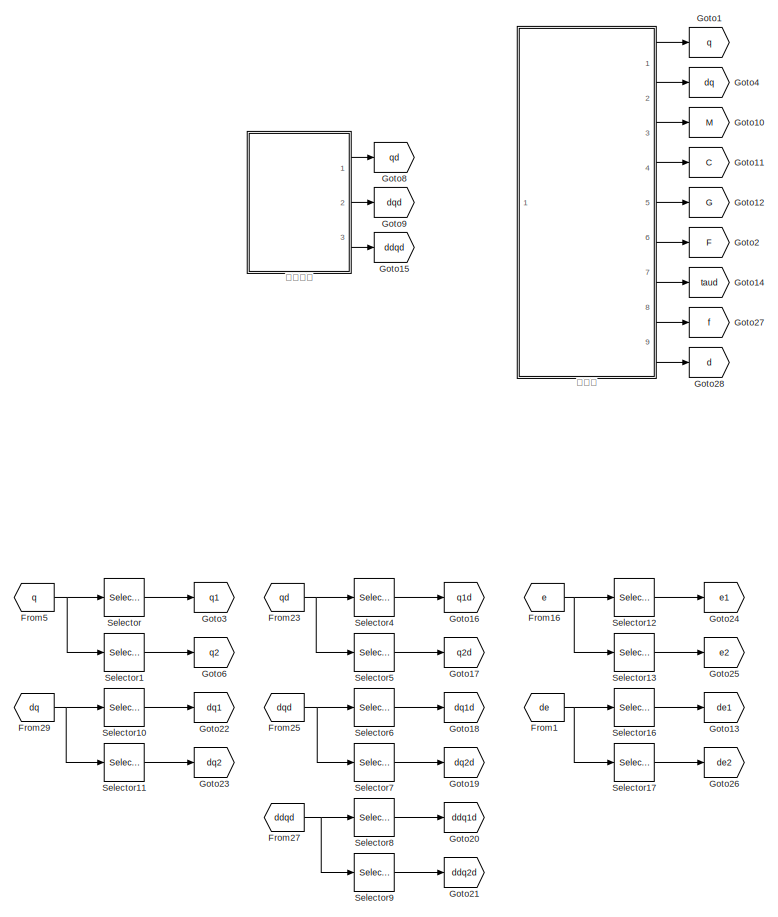
[diagram: root canvas - part 1/2, left side, full height]
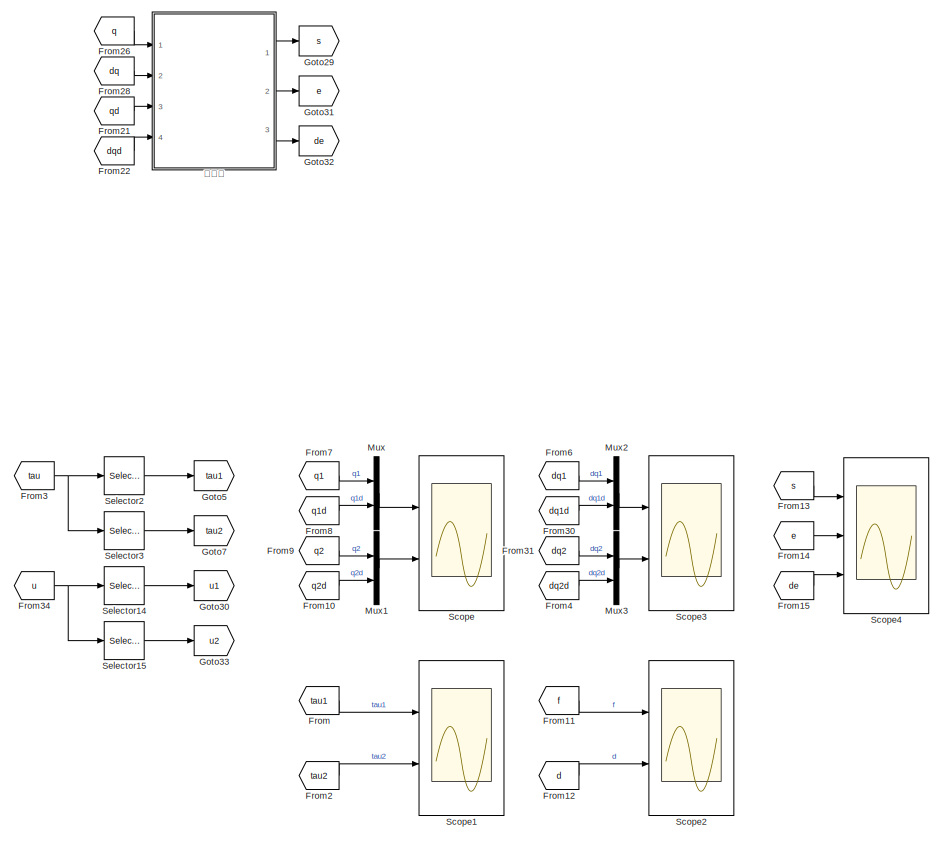
[diagram: root canvas - part 2/2, right side, full height]
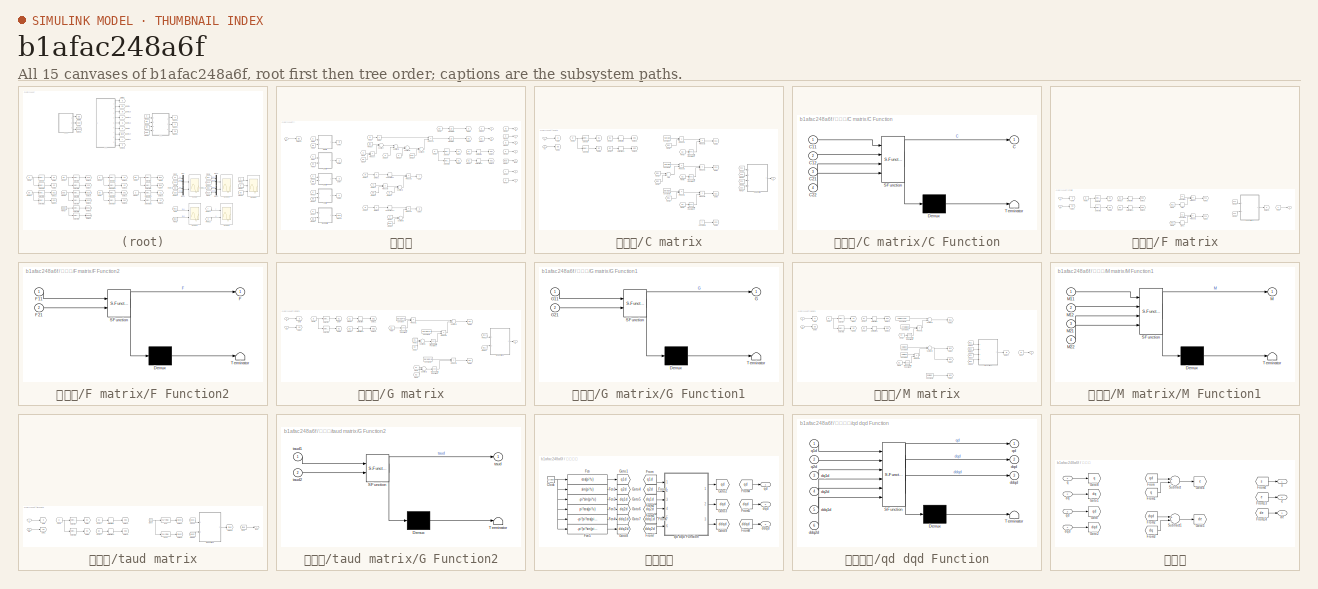
[diagram: thumbnail index - all 15 canvases of the model, root first then tree order]
MODEL slx_b1afac248a6f
KIND model
CONFIG AbsTol = auto
CONFIG FixedStep = 0.005
CONFIG MaxStep = auto
CONFIG MinStep = auto
CONFIG RelTol = 1e-3
CONFIG SampleTimeConstraint = Unconstrained
CONFIG Solver = ode4
CONFIG SolverMode = Auto
CONFIG SolverName = ode4
CONFIG StartTime = 0.0
CONFIG StopTime = 10
BLOCK [From] From
  GotoTag = tau1
BLOCK [From] From1
  GotoTag = de
BLOCK [From] From10
  GotoTag = q2d
BLOCK [From] From11
  GotoTag = f
BLOCK [From] From12
  GotoTag = d
BLOCK [From] From13
  GotoTag = s
BLOCK [From] From14
  GotoTag = e
BLOCK [From] From15
  GotoTag = de
BLOCK [From] From16
  GotoTag = e
BLOCK [From] From2
  GotoTag = tau2
BLOCK [From] From21
  GotoTag = qd
BLOCK [From] From22
  GotoTag = dqd
BLOCK [From] From23
  GotoTag = qd
BLOCK [From] From25
  GotoTag = dqd
BLOCK [From] From26
  GotoTag = q
BLOCK [From] From27
  GotoTag = ddqd
BLOCK [From] From28
  GotoTag = dq
BLOCK [From] From29
  GotoTag = dq
BLOCK [From] From3
  GotoTag = tau
BLOCK [From] From30
  GotoTag = dq1d
BLOCK [From] From31
  GotoTag = dq2
BLOCK [From] From34
  GotoTag = u
BLOCK [From] From4
  GotoTag = dq2d
BLOCK [From] From5
  GotoTag = q
BLOCK [From] From6
  GotoTag = dq1
BLOCK [From] From7
  GotoTag = q1
BLOCK [From] From8
  GotoTag = q1d
BLOCK [From] From9
  GotoTag = q2
BLOCK [Goto] Goto1
  GotoTag = q
BLOCK [Goto] Goto10
  GotoTag = M
BLOCK [Goto] Goto11
  GotoTag = C
BLOCK [Goto] Goto12
  GotoTag = G
BLOCK [Goto] Goto13
  GotoTag = de1
BLOCK [Goto] Goto14
  GotoTag = taud
BLOCK [Goto] Goto15
  GotoTag = ddqd
BLOCK [Goto] Goto16
  GotoTag = q1d
BLOCK [Goto] Goto17
  GotoTag = q2d
BLOCK [Goto] Goto18
  GotoTag = dq1d
BLOCK [Goto] Goto19
  GotoTag = dq2d
BLOCK [Goto] Goto2
  GotoTag = F
BLOCK [Goto] Goto20
  GotoTag = ddq1d
BLOCK [Goto] Goto21
  GotoTag = ddq2d
BLOCK [Goto] Goto22
  GotoTag = dq1
BLOCK [Goto] Goto23
  GotoTag = dq2
BLOCK [Goto] Goto24
  GotoTag = e1
BLOCK [Goto] Goto25
  GotoTag = e2
BLOCK [Goto] Goto26
  GotoTag = de2
BLOCK [Goto] Goto27
  GotoTag = f
BLOCK [Goto] Goto28
  GotoTag = d
BLOCK [Goto] Goto29
  GotoTag = s
BLOCK [Goto] Goto3
  GotoTag = q1
BLOCK [Goto] Goto30
  GotoTag = u1
BLOCK [Goto] Goto31
  GotoTag = e
BLOCK [Goto] Goto32
  GotoTag = de
BLOCK [Goto] Goto33
  GotoTag = u2
BLOCK [Goto] Goto4
  GotoTag = dq
BLOCK [Goto] Goto5
  GotoTag = tau1
BLOCK [Goto] Goto6
  GotoTag = q2
BLOCK [Goto] Goto7
  GotoTag = tau2
BLOCK [Goto] Goto8
  GotoTag = qd
BLOCK [Goto] Goto9
  GotoTag = dqd
BLOCK [Mux] Mux
  DisplayOption = bar
  Inputs = 2
  Ports = [2, 1]
BLOCK [Mux] Mux1
  DisplayOption = bar
  Inputs = 2
  Ports = [2, 1]
BLOCK [Mux] Mux2
  DisplayOption = bar
  Inputs = 2
  Ports = [2, 1]
BLOCK [Mux] Mux3
  DisplayOption = bar
  Inputs = 2
  Ports = [2, 1]
BLOCK [Scope] Scope
  NumInputPorts = 2
  Ports = [2]
  ScopeSpecificationString = Simulink.scopes.TimeScopeBlockCfg('CurrentConfiguration', extmgr.ConfigurationSet(extmgr.Configuration('Core','General UI',true),extmgr.Configuration('Core','Source UI',true),extmgr.Configuration('Sources','WiredSimulink',true),extmgr.Configuration('Visuals','Time Domain',true,'SerializedDisplays',{struct('MinYLimReal','-3.51104','MaxYLimReal','1.50123','YLabelReal','','MinYLimMag','0.00000','MaxY...<+2024ch>
BLOCK [Scope] Scope1
  NumInputPorts = 2
  Ports = [2]
  ScopeSpecificationString = Simulink.scopes.TimeScopeBlockCfg('CurrentConfiguration', extmgr.ConfigurationSet(extmgr.Configuration('Core','General UI',true),extmgr.Configuration('Core','Source UI',true),extmgr.Configuration('Sources','WiredSimulink',true,'DataLoggingVariableName','ScopeData1','DataLoggingSaveFormat','Array','DataLoggingDecimation','1','DataLoggingDecimateData',true),extmgr.Configuration('Visuals','Time Domai...<+2069ch>
BLOCK [Scope] Scope2
  NumInputPorts = 2
  Ports = [2]
  ScopeSpecificationString = Simulink.scopes.TimeScopeBlockCfg('CurrentConfiguration', extmgr.ConfigurationSet(extmgr.Configuration('Core','General UI',true),extmgr.Configuration('Core','Source UI',true),extmgr.Configuration('Sources','WiredSimulink',true,'DataLoggingVariableName','ScopeData1'),extmgr.Configuration('Visuals','Time Domain',true,'SerializedDisplays',{struct('MinYLimReal','-48.52603','MaxYLimReal','48.74842','YL...<+1999ch>
BLOCK [Scope] Scope3
  NumInputPorts = 2
  Ports = [2]
  ScopeSpecificationString = Simulink.scopes.TimeScopeBlockCfg('CurrentConfiguration', extmgr.ConfigurationSet(extmgr.Configuration('Core','General UI',true),extmgr.Configuration('Core','Source UI',true),extmgr.Configuration('Sources','WiredSimulink',true,'DataLoggingVariableName','ScopeData2'),extmgr.Configuration('Visuals','Time Domain',true,'SerializedDisplays',{struct('MinYLimReal','-4.22896','MaxYLimReal','3.96054','YLab...<+2022ch>
BLOCK [Scope] Scope4
  NumInputPorts = 3
  Ports = [3]
  ScopeSpecificationString = Simulink.scopes.TimeScopeBlockCfg('CurrentConfiguration', extmgr.ConfigurationSet(extmgr.Configuration('Core','General UI',true),extmgr.Configuration('Core','Source UI',true),extmgr.Configuration('Sources','WiredSimulink',true,'DataLoggingVariableName','ScopeData1'),extmgr.Configuration('Visuals','Time Domain',true,'SerializedDisplays',{struct('MinYLimReal','-48.52603','MaxYLimReal','48.74842','YL...<+2928ch>
BLOCK [Selector] Selector
  IndexOptions = Index vector (dialog)
  Indices = [1]
  InputPortWidth = 2
  OutputSizes = 1
  Ports = [1, 1]
BLOCK [Selector] Selector1
  IndexOptions = Index vector (dialog)
  Indices = [2]
  InputPortWidth = 2
  OutputSizes = 1
  Ports = [1, 1]
BLOCK [Selector] Selector10
  IndexOptions = Index vector (dialog)
  Indices = [1]
  InputPortWidth = 2
  OutputSizes = 1
  Ports = [1, 1]
BLOCK [Selector] Selector11
  IndexOptions = Index vector (dialog)
  Indices = [2]
  InputPortWidth = 2
  OutputSizes = 1
  Ports = [1, 1]
BLOCK [Selector] Selector12
  IndexOptions = Index vector (dialog)
  Indices = [1]
  InputPortWidth = 2
  OutputSizes = 1
  Ports = [1, 1]
BLOCK [Selector] Selector13
  IndexOptions = Index vector (dialog)
  Indices = [2]
  InputPortWidth = 2
  OutputSizes = 1
  Ports = [1, 1]
BLOCK [Selector] Selector14
  IndexOptions = Index vector (dialog)
  Indices = [1]
  InputPortWidth = 2
  OutputSizes = 1
  Ports = [1, 1]
BLOCK [Selector] Selector15
  IndexOptions = Index vector (dialog)
  Indices = [2]
  InputPortWidth = 2
  OutputSizes = 1
  Ports = [1, 1]
BLOCK [Selector] Selector16
  IndexOptions = Index vector (dialog)
  Indices = [1]
  InputPortWidth = 2
  OutputSizes = 1
  Ports = [1, 1]
BLOCK [Selector] Selector17
  IndexOptions = Index vector (dialog)
  Indices = [2]
  InputPortWidth = 2
  OutputSizes = 1
  Ports = [1, 1]
BLOCK [Selector] Selector2
  IndexOptions = Index vector (dialog)
  Indices = [1]
  InputPortWidth = 2
  OutputSizes = 1
  Ports = [1, 1]
BLOCK [Selector] Selector3
  IndexOptions = Index vector (dialog)
  Indices = [2]
  InputPortWidth = 2
  OutputSizes = 1
  Ports = [1, 1]
BLOCK [Selector] Selector4
  IndexOptions = Index vector (dialog)
  Indices = [1]
  InputPortWidth = 2
  OutputSizes = 1
  Ports = [1, 1]
BLOCK [Selector] Selector5
  IndexOptions = Index vector (dialog)
  Indices = [2]
  InputPortWidth = 2
  OutputSizes = 1
  Ports = [1, 1]
BLOCK [Selector] Selector6
  IndexOptions = Index vector (dialog)
  Indices = [1]
  InputPortWidth = 2
  OutputSizes = 1
  Ports = [1, 1]
BLOCK [Selector] Selector7
  IndexOptions = Index vector (dialog)
  Indices = [2]
  InputPortWidth = 2
  OutputSizes = 1
  Ports = [1, 1]
BLOCK [Selector] Selector8
  IndexOptions = Index vector (dialog)
  Indices = [1]
  InputPortWidth = 2
  OutputSizes = 1
  Ports = [1, 1]
BLOCK [Selector] Selector9
  IndexOptions = Index vector (dialog)
  Indices = [2]
  InputPortWidth = 2
  OutputSizes = 1
  Ports = [1, 1]
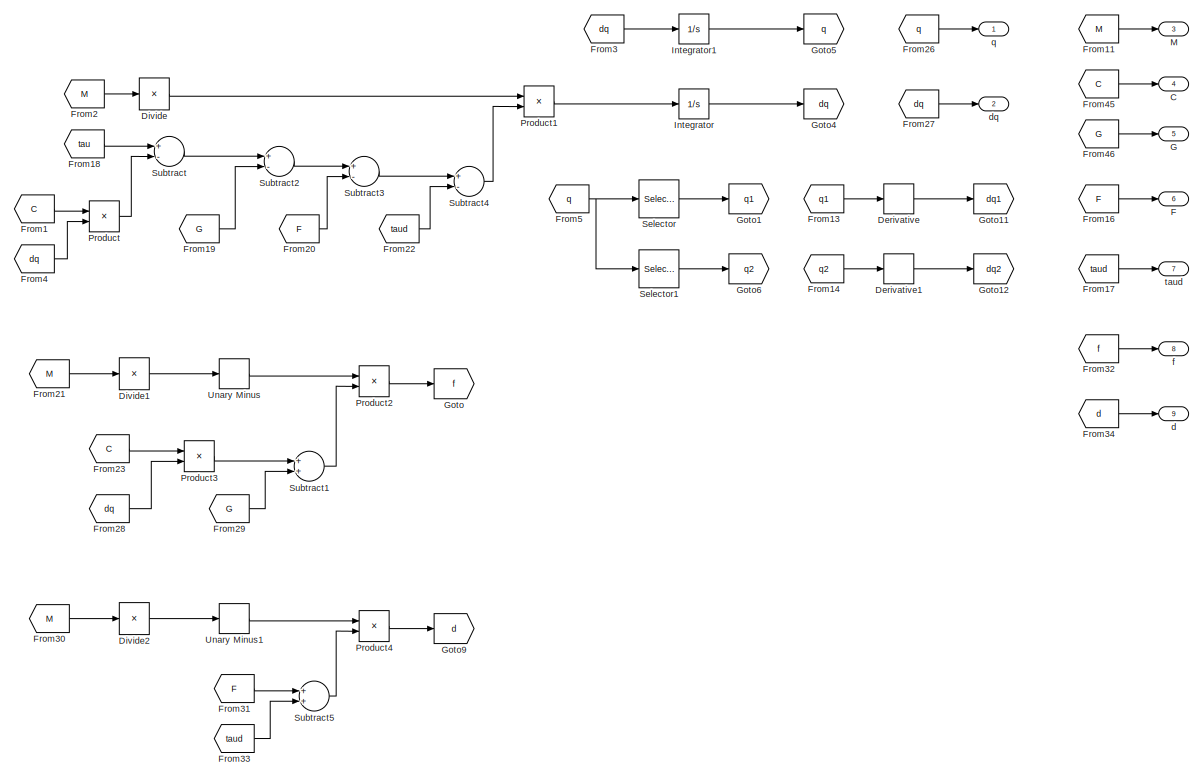
[diagram: 主系统 - part 1/2, center side, full height]
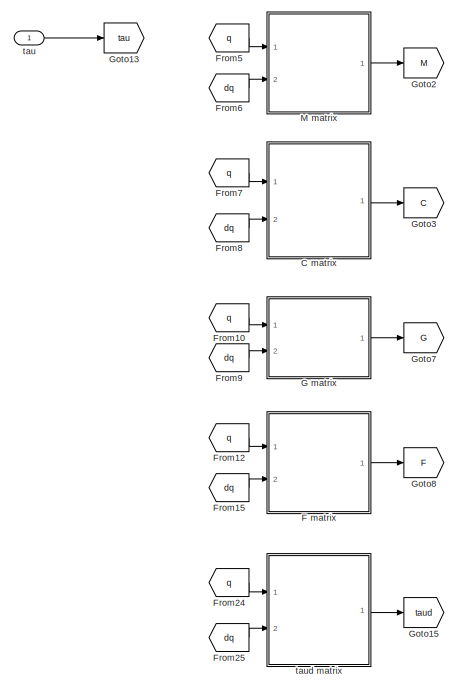
[diagram: 主系统 - part 2/2, left side, full height]
BLOCK [SubSystem] 主系统
  Ports = [1, 9]
  RequestExecContextInheritance = off
  Variant = off
BLOCK [Outport] 主系统/C
  IconDisplay = Port number
  Port = 4
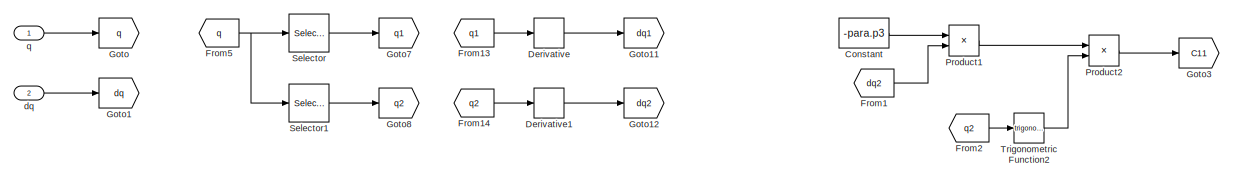
[diagram: 主系统/C matrix - part 1/2, full width, top band]
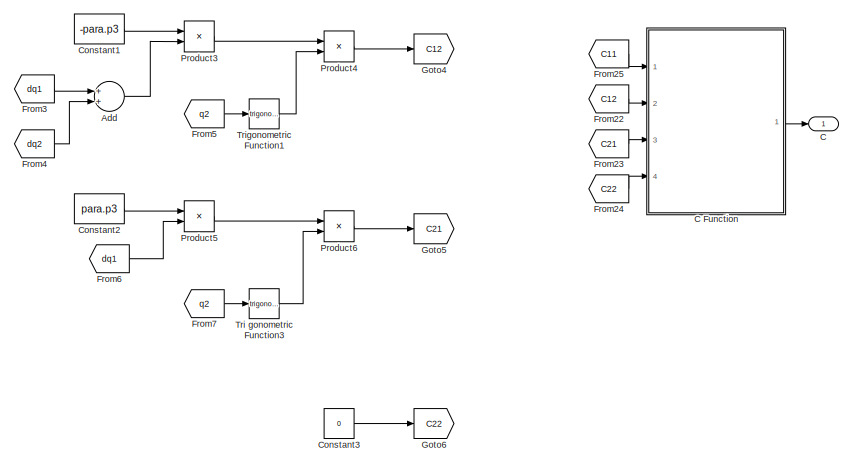
[diagram: 主系统/C matrix - part 2/2, middle right region]
BLOCK [SubSystem] 主系统/C matrix
  Ports = [2, 1]
  RequestExecContextInheritance = off
  Variant = off
BLOCK [Sum] 主系统/C matrix/Add
  InputSameDT = off
  OutDataTypeStr = Inherit: Inherit via internal rule
  Ports = [2, 1]
  SaturateOnIntegerOverflow = off
BLOCK [Outport] 主系统/C matrix/C
  IconDisplay = Port number
BLOCK [SubSystem] 主系统/C matrix/C Function
  ErrorFcn = Stateflow.Translate.translate
  PermitHierarchicalResolution = ExplicitOnly
  Ports = [4, 1]
  RequestExecContextInheritance = off
  SFBlockType = MATLAB Function
  TreatAsAtomicUnit = on
  Variant = off
BLOCK [Demux] 主系统/C matrix/C Function/ Demux 
  Outputs = 1
  Ports = [1, 1]
BLOCK [S-Function] 主系统/C matrix/C Function/ SFunction 
  EnableBusSupport = on
  FunctionName = sf_sfun
  PortCounts = [4 2]
  Ports = [4, 2]
  SFunctionDeploymentMode = off
  Tag = Stateflow S-Function common_2 3
BLOCK [Terminator] 主系统/C matrix/C Function/ Terminator 
BLOCK [Outport] 主系统/C matrix/C Function/C
  IconDisplay = Port number
BLOCK [Inport] 主系统/C matrix/C Function/C11
  IconDisplay = Port number
BLOCK [Inport] 主系统/C matrix/C Function/C12
  IconDisplay = Port number
  Port = 2
BLOCK [Inport] 主系统/C matrix/C Function/C21
  IconDisplay = Port number
  Port = 3
BLOCK [Inport] 主系统/C matrix/C Function/C22
  IconDisplay = Port number
  Port = 4
BLOCK [Constant] 主系统/C matrix/Constant
  Value = -para.p3
BLOCK [Constant] 主系统/C matrix/Constant1
  Value = -para.p3
BLOCK [Constant] 主系统/C matrix/Constant2
  Value = para.p3
BLOCK [Constant] 主系统/C matrix/Constant3
  Value = 0
BLOCK [Derivative] 主系统/C matrix/Derivative
BLOCK [Derivative] 主系统/C matrix/Derivative1
BLOCK [From] 主系统/C matrix/From1
  GotoTag = dq2
BLOCK [From] 主系统/C matrix/From13
  GotoTag = q1
BLOCK [From] 主系统/C matrix/From14
  GotoTag = q2
BLOCK [From] 主系统/C matrix/From2
  GotoTag = q2
BLOCK [From] 主系统/C matrix/From22
  GotoTag = C12
BLOCK [From] 主系统/C matrix/From23
  GotoTag = C21
BLOCK [From] 主系统/C matrix/From24
  GotoTag = C22
BLOCK [From] 主系统/C matrix/From25
  GotoTag = C11
BLOCK [From] 主系统/C matrix/From3
  GotoTag = dq1
BLOCK [From] 主系统/C matrix/From4
  GotoTag = dq2
BLOCK [From] 主系统/C matrix/From5
  GotoTag = q2
BLOCK [From] 主系统/C matrix/From5 
  GotoTag = q
BLOCK [From] 主系统/C matrix/From6
  GotoTag = dq1
BLOCK [From] 主系统/C matrix/From7
  GotoTag = q2
BLOCK [Goto] 主系统/C matrix/Goto
  GotoTag = q
BLOCK [Goto] 主系统/C matrix/Goto1
  GotoTag = dq
BLOCK [Goto] 主系统/C matrix/Goto11
  GotoTag = dq1
BLOCK [Goto] 主系统/C matrix/Goto12
  GotoTag = dq2
BLOCK [Goto] 主系统/C matrix/Goto3
  GotoTag = C11
BLOCK [Goto] 主系统/C matrix/Goto4
  GotoTag = C12
BLOCK [Goto] 主系统/C matrix/Goto5
  GotoTag = C21
BLOCK [Goto] 主系统/C matrix/Goto6
  GotoTag = C22
BLOCK [Goto] 主系统/C matrix/Goto7
  GotoTag = q1
BLOCK [Goto] 主系统/C matrix/Goto8
  GotoTag = q2
BLOCK [Product] 主系统/C matrix/Product1
  InputSameDT = off
  OutDataTypeStr = Inherit: Inherit via internal rule
  Ports = [2, 1]
  RndMeth = Floor
  SaturateOnIntegerOverflow = off
BLOCK [Product] 主系统/C matrix/Product2
  InputSameDT = off
  OutDataTypeStr = Inherit: Inherit via internal rule
  Ports = [2, 1]
  RndMeth = Floor
  SaturateOnIntegerOverflow = off
BLOCK [Product] 主系统/C matrix/Product3
  InputSameDT = off
  OutDataTypeStr = Inherit: Inherit via internal rule
  Ports = [2, 1]
  RndMeth = Floor
  SaturateOnIntegerOverflow = off
BLOCK [Product] 主系统/C matrix/Product4
  InputSameDT = off
  OutDataTypeStr = Inherit: Inherit via internal rule
  Ports = [2, 1]
  RndMeth = Floor
  SaturateOnIntegerOverflow = off
BLOCK [Product] 主系统/C matrix/Product5
  InputSameDT = off
  OutDataTypeStr = Inherit: Inherit via internal rule
  Ports = [2, 1]
  RndMeth = Floor
  SaturateOnIntegerOverflow = off
BLOCK [Product] 主系统/C matrix/Product6
  InputSameDT = off
  OutDataTypeStr = Inherit: Inherit via internal rule
  Ports = [2, 1]
  RndMeth = Floor
  SaturateOnIntegerOverflow = off
BLOCK [Selector] 主系统/C matrix/Selector
  IndexOptions = Index vector (dialog)
  Indices = [1]
  InputPortWidth = 2
  OutputSizes = 1
  Ports = [1, 1]
BLOCK [Selector] 主系统/C matrix/Selector1
  IndexOptions = Index vector (dialog)
  Indices = [2]
  InputPortWidth = 2
  OutputSizes = 1
  Ports = [1, 1]
BLOCK [Trigonometry] 主系统/C matrix/Tri gonometric Function3
  Ports = [1, 1]
BLOCK [Trigonometry] 主系统/C matrix/Trigonometric Function1
  Ports = [1, 1]
BLOCK [Trigonometry] 主系统/C matrix/Trigonometric Function2
  Ports = [1, 1]
BLOCK [Inport] 主系统/C matrix/dq
  IconDisplay = Port number
  Port = 2
BLOCK [Inport] 主系统/C matrix/q
  IconDisplay = Port number
BLOCK [Derivative] 主系统/Derivative
BLOCK [Derivative] 主系统/Derivative1
BLOCK [Product] 主系统/Divide
  InputSameDT = off
  Inputs = /
  Multiplication = Matrix(*)
  OutDataTypeStr = Inherit: Inherit via internal rule
  Ports = [1, 1]
  RndMeth = Floor
  SaturateOnIntegerOverflow = off
BLOCK [Product] 主系统/Divide1
  InputSameDT = off
  Inputs = /
  Multiplication = Matrix(*)
  OutDataTypeStr = Inherit: Inherit via internal rule
  Ports = [1, 1]
  RndMeth = Floor
  SaturateOnIntegerOverflow = off
BLOCK [Product] 主系统/Divide2
  InputSameDT = off
  Inputs = /
  Multiplication = Matrix(*)
  OutDataTypeStr = Inherit: Inherit via internal rule
  Ports = [1, 1]
  RndMeth = Floor
  SaturateOnIntegerOverflow = off
BLOCK [Outport] 主系统/F
  IconDisplay = Port number
  Port = 6
BLOCK [SubSystem] 主系统/F matrix
  Ports = [2, 1]
  RequestExecContextInheritance = off
  Variant = off
BLOCK [Constant] 主系统/F matrix/Constant
  Value = 0.2
BLOCK [Constant] 主系统/F matrix/Constant1
  Value = 0.2
BLOCK [Derivative] 主系统/F matrix/Derivative
BLOCK [Derivative] 主系统/F matrix/Derivative1
BLOCK [Outport] 主系统/F matrix/F
  IconDisplay = Port number
BLOCK [SubSystem] 主系统/F matrix/F Function2
  ErrorFcn = Stateflow.Translate.translate
  PermitHierarchicalResolution = ExplicitOnly
  Ports = [2, 1]
  RequestExecContextInheritance = off
  SFBlockType = MATLAB Function
  TreatAsAtomicUnit = on
  Variant = off
BLOCK [Demux] 主系统/F matrix/F Function2/ Demux 
  Outputs = 1
  Ports = [1, 1]
BLOCK [S-Function] 主系统/F matrix/F Function2/ SFunction 
  EnableBusSupport = on
  FunctionName = sf_sfun
  PortCounts = [2 2]
  Ports = [2, 2]
  SFunctionDeploymentMode = off
  Tag = Stateflow S-Function common_2 5
BLOCK [Terminator] 主系统/F matrix/F Function2/ Terminator 
BLOCK [Outport] 主系统/F matrix/F Function2/F
  IconDisplay = Port number
BLOCK [Inport] 主系统/F matrix/F Function2/F11
  IconDisplay = Port number
BLOCK [Inport] 主系统/F matrix/F Function2/F21
  IconDisplay = Port number
  Port = 2
BLOCK [From] 主系统/F matrix/From
  GotoTag = F
BLOCK [From] 主系统/F matrix/From1
  GotoTag = dq1
BLOCK [From] 主系统/F matrix/From13
  GotoTag = q1
BLOCK [From] 主系统/F matrix/From14
  GotoTag = q2
BLOCK [From] 主系统/F matrix/From19
  GotoTag = F11
BLOCK [From] 主系统/F matrix/From2
  GotoTag = dq2
BLOCK [From] 主系统/F matrix/From39
  GotoTag = F21
BLOCK [From] 主系统/F matrix/From5 
  GotoTag = q
BLOCK [Goto] 主系统/F matrix/Goto
  GotoTag = q
BLOCK [Goto] 主系统/F matrix/Goto1
  GotoTag = dq
BLOCK [Goto] 主系统/F matrix/Goto11
  GotoTag = dq1
BLOCK [Goto] 主系统/F matrix/Goto12
  GotoTag = dq2
BLOCK [Goto] 主系统/F matrix/Goto2
  GotoTag = F11
BLOCK [Goto] 主系统/F matrix/Goto23
  GotoTag = F
BLOCK [Goto] 主系统/F matrix/Goto3
  GotoTag = F21
BLOCK [Goto] 主系统/F matrix/Goto7
  GotoTag = q1
BLOCK [Goto] 主系统/F matrix/Goto8
  GotoTag = q2
BLOCK [Product] 主系统/F matrix/Product
  InputSameDT = off
  OutDataTypeStr = Inherit: Inherit via internal rule
  Ports = [2, 1]
  RndMeth = Floor
  SaturateOnIntegerOverflow = off
BLOCK [Product] 主系统/F matrix/Product1
  InputSameDT = off
  OutDataTypeStr = Inherit: Inherit via internal rule
  Ports = [2, 1]
  RndMeth = Floor
  SaturateOnIntegerOverflow = off
BLOCK [Selector] 主系统/F matrix/Selector
  IndexOptions = Index vector (dialog)
  Indices = [1]
  InputPortWidth = 2
  OutputSizes = 1
  Ports = [1, 1]
BLOCK [Selector] 主系统/F matrix/Selector1
  IndexOptions = Index vector (dialog)
  Indices = [2]
  InputPortWidth = 2
  OutputSizes = 1
  Ports = [1, 1]
BLOCK [Signum] 主系统/F matrix/Sign
BLOCK [Signum] 主系统/F matrix/Sign1
BLOCK [Inport] 主系统/F matrix/dq
  IconDisplay = Port number
  Port = 2
BLOCK [Inport] 主系统/F matrix/q
  IconDisplay = Port number
BLOCK [From] 主系统/From1
  GotoTag = C
BLOCK [From] 主系统/From10
  GotoTag = q
BLOCK [From] 主系统/From11
  GotoTag = M
BLOCK [From] 主系统/From12
  GotoTag = q
BLOCK [From] 主系统/From13
  GotoTag = q1
BLOCK [From] 主系统/From14
  GotoTag = q2
BLOCK [From] 主系统/From15
  GotoTag = dq
BLOCK [From] 主系统/From16
  GotoTag = F
BLOCK [From] 主系统/From17
  GotoTag = taud
BLOCK [From] 主系统/From18
  GotoTag = tau
BLOCK [From] 主系统/From19
  GotoTag = G
BLOCK [From] 主系统/From2
  GotoTag = M
BLOCK [From] 主系统/From20
  GotoTag = F
BLOCK [From] 主系统/From21
  GotoTag = M
BLOCK [From] 主系统/From22
  GotoTag = taud
BLOCK [From] 主系统/From23
  GotoTag = C
BLOCK [From] 主系统/From24
  GotoTag = q
BLOCK [From] 主系统/From25
  GotoTag = dq
BLOCK [From] 主系统/From26
  GotoTag = q
BLOCK [From] 主系统/From27
  GotoTag = dq
BLOCK [From] 主系统/From28
  GotoTag = dq
BLOCK [From] 主系统/From29
  GotoTag = G
BLOCK [From] 主系统/From3
  GotoTag = dq
BLOCK [From] 主系统/From30
  GotoTag = M
BLOCK [From] 主系统/From31
  GotoTag = F
BLOCK [From] 主系统/From32
  GotoTag = f
BLOCK [From] 主系统/From33
  GotoTag = taud
BLOCK [From] 主系统/From34
  GotoTag = d
BLOCK [From] 主系统/From4
  GotoTag = dq
BLOCK [From] 主系统/From45
  GotoTag = C
BLOCK [From] 主系统/From46
  GotoTag = G
BLOCK [From] 主系统/From5
  GotoTag = q
BLOCK [From] 主系统/From5 
  GotoTag = q
BLOCK [From] 主系统/From6
  GotoTag = dq
BLOCK [From] 主系统/From7
  GotoTag = q
BLOCK [From] 主系统/From8
  GotoTag = dq
BLOCK [From] 主系统/From9
  GotoTag = dq
BLOCK [Outport] 主系统/G
  IconDisplay = Port number
  Port = 5
BLOCK [SubSystem] 主系统/G matrix
  Ports = [2, 1]
  RequestExecContextInheritance = off
  Variant = off
BLOCK [Constant] 主系统/G matrix/Constant
  Value = para.p4*g
BLOCK [Constant] 主系统/G matrix/Constant1
  Value = para.p5*g
BLOCK [Constant] 主系统/G matrix/Constant2
  Value = para.p5*g
BLOCK [Derivative] 主系统/G matrix/Derivative
BLOCK [Derivative] 主系统/G matrix/Derivative1
BLOCK [From] 主系统/G matrix/From
  GotoTag = q1
BLOCK [From] 主系统/G matrix/From1
  GotoTag = q1
BLOCK [From] 主系统/G matrix/From10
  GotoTag = G21
BLOCK [From] 主系统/G matrix/From12
  GotoTag = G11
BLOCK [From] 主系统/G matrix/From13
  GotoTag = q1
BLOCK [From] 主系统/G matrix/From14
  GotoTag = q2
BLOCK [From] 主系统/G matrix/From2
  GotoTag = q1
BLOCK [From] 主系统/G matrix/From3
  GotoTag = q2
BLOCK [From] 主系统/G matrix/From4
  GotoTag = q2
BLOCK [From] 主系统/G matrix/From5 
  GotoTag = q
BLOCK [Outport] 主系统/G matrix/G
  IconDisplay = Port number
BLOCK [SubSystem] 主系统/G matrix/G Function1
  ErrorFcn = Stateflow.Translate.translate
  PermitHierarchicalResolution = ExplicitOnly
  Ports = [2, 1]
  RequestExecContextInheritance = off
  SFBlockType = MATLAB Function
  TreatAsAtomicUnit = on
  Variant = off
BLOCK [Demux] 主系统/G matrix/G Function1/ Demux 
  Outputs = 1
  Ports = [1, 1]
BLOCK [S-Function] 主系统/G matrix/G Function1/ SFunction 
  EnableBusSupport = on
  FunctionName = sf_sfun
  PortCounts = [2 2]
  Ports = [2, 2]
  SFunctionDeploymentMode = off
  Tag = Stateflow S-Function common_2 2
BLOCK [Terminator] 主系统/G matrix/G Function1/ Terminator 
BLOCK [Outport] 主系统/G matrix/G Function1/G
  IconDisplay = Port number
BLOCK [Inport] 主系统/G matrix/G Function1/G11
  IconDisplay = Port number
BLOCK [Inport] 主系统/G matrix/G Function1/G21
  IconDisplay = Port number
  Port = 2
BLOCK [Goto] 主系统/G matrix/Goto
  GotoTag = q
BLOCK [Goto] 主系统/G matrix/Goto1
  GotoTag = G21
BLOCK [Goto] 主系统/G matrix/Goto11
  GotoTag = dq1
BLOCK [Goto] 主系统/G matrix/Goto12
  GotoTag = dq2
BLOCK [Goto] 主系统/G matrix/Goto2
  GotoTag = G11
BLOCK [Goto] 主系统/G matrix/Goto3
  GotoTag = dq
BLOCK [Goto] 主系统/G matrix/Goto7
  GotoTag = q1
BLOCK [Goto] 主系统/G matrix/Goto8
  GotoTag = q2
BLOCK [Product] 主系统/G matrix/Product1
  InputSameDT = off
  OutDataTypeStr = Inherit: Inherit via internal rule
  Ports = [2, 1]
  RndMeth = Floor
  SaturateOnIntegerOverflow = off
BLOCK [Product] 主系统/G matrix/Product2
  InputSameDT = off
  OutDataTypeStr = Inherit: Inherit via internal rule
  Ports = [2, 1]
  RndMeth = Floor
  SaturateOnIntegerOverflow = off
BLOCK [Product] 主系统/G matrix/Product3
  InputSameDT = off
  OutDataTypeStr = Inherit: Inherit via internal rule
  Ports = [2, 1]
  RndMeth = Floor
  SaturateOnIntegerOverflow = off
BLOCK [Selector] 主系统/G matrix/Selector
  IndexOptions = Index vector (dialog)
  Indices = [1]
  InputPortWidth = 2
  OutputSizes = 1
  Ports = [1, 1]
BLOCK [Selector] 主系统/G matrix/Selector1
  IndexOptions = Index vector (dialog)
  Indices = [2]
  InputPortWidth = 2
  OutputSizes = 1
  Ports = [1, 1]
BLOCK [Sum] 主系统/G matrix/Subtract1
  InputSameDT = off
  OutDataTypeStr = Inherit: Inherit via internal rule
  Ports = [2, 1]
  SaturateOnIntegerOverflow = off
BLOCK [Sum] 主系统/G matrix/Subtract4
  InputSameDT = off
  OutDataTypeStr = Inherit: Inherit via internal rule
  Ports = [2, 1]
  SaturateOnIntegerOverflow = off
BLOCK [Sum] 主系统/G matrix/Subtract5
  InputSameDT = off
  OutDataTypeStr = Inherit: Inherit via internal rule
  Ports = [2, 1]
  SaturateOnIntegerOverflow = off
BLOCK [Trigonometry] 主系统/G matrix/Trigonometric Function1
  Operator = cos
  Ports = [1, 1]
BLOCK [Trigonometry] 主系统/G matrix/Trigonometric Function2
  Operator = cos
  Ports = [1, 1]
BLOCK [Trigonometry] 主系统/G matrix/Trigonometric Function3
  Operator = cos
  Ports = [1, 1]
BLOCK [Inport] 主系统/G matrix/dq
  IconDisplay = Port number
  Port = 2
BLOCK [Inport] 主系统/G matrix/q
  IconDisplay = Port number
BLOCK [Goto] 主系统/Goto
  GotoTag = f
BLOCK [Goto] 主系统/Goto1
  GotoTag = q1
BLOCK [Goto] 主系统/Goto11
  GotoTag = dq1
BLOCK [Goto] 主系统/Goto12
  GotoTag = dq2
BLOCK [Goto] 主系统/Goto13
  GotoTag = tau
BLOCK [Goto] 主系统/Goto15
  GotoTag = taud
BLOCK [Goto] 主系统/Goto2
  GotoTag = M
BLOCK [Goto] 主系统/Goto3
  GotoTag = C
BLOCK [Goto] 主系统/Goto4
  GotoTag = dq
BLOCK [Goto] 主系统/Goto5
  GotoTag = q
BLOCK [Goto] 主系统/Goto6
  GotoTag = q2
BLOCK [Goto] 主系统/Goto7
  GotoTag = G
BLOCK [Goto] 主系统/Goto8
  GotoTag = F
BLOCK [Goto] 主系统/Goto9
  GotoTag = d
BLOCK [Integrator] 主系统/Integrator
  InitialCondition = dq_init
  Ports = [1, 1]
BLOCK [Integrator] 主系统/Integrator1
  InitialCondition = q_init
  Ports = [1, 1]
BLOCK [Outport] 主系统/M
  IconDisplay = Port number
  Port = 3
BLOCK [SubSystem] 主系统/M matrix
  Ports = [2, 1]
  RequestExecContextInheritance = off
  Variant = off
BLOCK [Constant] 主系统/M matrix/Constant1
  Value = 2*para.p3
BLOCK [Constant] 主系统/M matrix/Constant2
  Value = para.p1+para.p2
BLOCK [Constant] 主系统/M matrix/Constant3
  Value = para.p2
BLOCK [Constant] 主系统/M matrix/Constant4
  Value = para.p3
BLOCK [Constant] 主系统/M matrix/Constant5
  Value = para.p2
BLOCK [Derivative] 主系统/M matrix/Derivative
BLOCK [Derivative] 主系统/M matrix/Derivative1
BLOCK [From] 主系统/M matrix/From
  GotoTag = M
BLOCK [From] 主系统/M matrix/From1
  GotoTag = q2
BLOCK [From] 主系统/M matrix/From13
  GotoTag = q1
BLOCK [From] 主系统/M matrix/From14
  GotoTag = q2
BLOCK [From] 主系统/M matrix/From32
  GotoTag = M11
BLOCK [From] 主系统/M matrix/From33
  GotoTag = M12
BLOCK [From] 主系统/M matrix/From34
  GotoTag = M21
BLOCK [From] 主系统/M matrix/From35
  GotoTag = M22
BLOCK [From] 主系统/M matrix/From5
  GotoTag = q2
BLOCK [From] 主系统/M matrix/From5 
  GotoTag = q
BLOCK [Goto] 主系统/M matrix/Goto
  GotoTag = q
BLOCK [Goto] 主系统/M matrix/Goto1
  GotoTag = M11
BLOCK [Goto] 主系统/M matrix/Goto11
  GotoTag = dq1
BLOCK [Goto] 主系统/M matrix/Goto12
  GotoTag = dq2
BLOCK [Goto] 主系统/M matrix/Goto17
  GotoTag = M
BLOCK [Goto] 主系统/M matrix/Goto2
  GotoTag = M12
BLOCK [Goto] 主系统/M matrix/Goto3
  GotoTag = M21
BLOCK [Goto] 主系统/M matrix/Goto4
  GotoTag = M22
BLOCK [Goto] 主系统/M matrix/Goto5
  GotoTag = dq
BLOCK [Goto] 主系统/M matrix/Goto7
  GotoTag = q1
BLOCK [Goto] 主系统/M matrix/Goto8
  GotoTag = q2
BLOCK [Outport] 主系统/M matrix/M
  IconDisplay = Port number
BLOCK [SubSystem] 主系统/M matrix/M Function1
  ErrorFcn = Stateflow.Translate.translate
  PermitHierarchicalResolution = ExplicitOnly
  Ports = [4, 1]
  RequestExecContextInheritance = off
  SFBlockType = MATLAB Function
  TreatAsAtomicUnit = on
  Variant = off
BLOCK [Demux] 主系统/M matrix/M Function1/ Demux 
  Outputs = 1
  Ports = [1, 1]
BLOCK [S-Function] 主系统/M matrix/M Function1/ SFunction 
  EnableBusSupport = on
  FunctionName = sf_sfun
  PortCounts = [4 2]
  Ports = [4, 2]
  SFunctionDeploymentMode = off
  Tag = Stateflow S-Function common_2 4
BLOCK [Terminator] 主系统/M matrix/M Function1/ Terminator 
BLOCK [Outport] 主系统/M matrix/M Function1/M
  IconDisplay = Port number
BLOCK [Inport] 主系统/M matrix/M Function1/M11
  IconDisplay = Port number
BLOCK [Inport] 主系统/M matrix/M Function1/M12
  IconDisplay = Port number
  Port = 2
BLOCK [Inport] 主系统/M matrix/M Function1/M21
  IconDisplay = Port number
  Port = 3
BLOCK [Inport] 主系统/M matrix/M Function1/M22
  IconDisplay = Port number
  Port = 4
BLOCK [Product] 主系统/M matrix/Product1
  InputSameDT = off
  OutDataTypeStr = Inherit: Inherit via internal rule
  Ports = [2, 1]
  RndMeth = Floor
  SaturateOnIntegerOverflow = off
BLOCK [Product] 主系统/M matrix/Product2
  InputSameDT = off
  OutDataTypeStr = Inherit: Inherit via internal rule
  Ports = [2, 1]
  RndMeth = Floor
  SaturateOnIntegerOverflow = off
BLOCK [Selector] 主系统/M matrix/Selector
  IndexOptions = Index vector (dialog)
  Indices = [1]
  InputPortWidth = 2
  OutputSizes = 1
  Ports = [1, 1]
BLOCK [Selector] 主系统/M matrix/Selector1
  IndexOptions = Index vector (dialog)
  Indices = [2]
  InputPortWidth = 2
  OutputSizes = 1
  Ports = [1, 1]
BLOCK [Sum] 主系统/M matrix/Subtract1
  InputSameDT = off
  OutDataTypeStr = Inherit: Inherit via internal rule
  Ports = [2, 1]
  SaturateOnIntegerOverflow = off
BLOCK [Sum] 主系统/M matrix/Subtract2
  InputSameDT = off
  OutDataTypeStr = Inherit: Inherit via internal rule
  Ports = [2, 1]
  SaturateOnIntegerOverflow = off
BLOCK [Trigonometry] 主系统/M matrix/Trigonometric Function1
  Operator = cos
  Ports = [1, 1]
BLOCK [Trigonometry] 主系统/M matrix/Trigonometric Function8
  Operator = cos
  Ports = [1, 1]
BLOCK [Inport] 主系统/M matrix/dq
  IconDisplay = Port number
  Port = 2
BLOCK [Inport] 主系统/M matrix/q
  IconDisplay = Port number
BLOCK [Product] 主系统/Product
  InputSameDT = off
  Multiplication = Matrix(*)
  OutDataTypeStr = Inherit: Inherit via internal rule
  Ports = [2, 1]
  RndMeth = Floor
  SaturateOnIntegerOverflow = off
BLOCK [Product] 主系统/Product1
  InputSameDT = off
  Multiplication = Matrix(*)
  OutDataTypeStr = Inherit: Inherit via internal rule
  Ports = [2, 1]
  RndMeth = Floor
  SaturateOnIntegerOverflow = off
BLOCK [Product] 主系统/Product2
  InputSameDT = off
  Multiplication = Matrix(*)
  OutDataTypeStr = Inherit: Inherit via internal rule
  Ports = [2, 1]
  RndMeth = Floor
  SaturateOnIntegerOverflow = off
BLOCK [Product] 主系统/Product3
  InputSameDT = off
  Multiplication = Matrix(*)
  OutDataTypeStr = Inherit: Inherit via internal rule
  Ports = [2, 1]
  RndMeth = Floor
  SaturateOnIntegerOverflow = off
BLOCK [Product] 主系统/Product4
  InputSameDT = off
  Multiplication = Matrix(*)
  OutDataTypeStr = Inherit: Inherit via internal rule
  Ports = [2, 1]
  RndMeth = Floor
  SaturateOnIntegerOverflow = off
BLOCK [Selector] 主系统/Selector
  IndexOptions = Index vector (dialog)
  Indices = [1]
  InputPortWidth = 2
  OutputSizes = 1
  Ports = [1, 1]
BLOCK [Selector] 主系统/Selector1
  IndexOptions = Index vector (dialog)
  Indices = [2]
  InputPortWidth = 2
  OutputSizes = 1
  Ports = [1, 1]
BLOCK [Sum] 主系统/Subtract
  InputSameDT = off
  Inputs = +-
  OutDataTypeStr = Inherit: Inherit via internal rule
  Ports = [2, 1]
  SaturateOnIntegerOverflow = off
BLOCK [Sum] 主系统/Subtract1
  InputSameDT = off
  OutDataTypeStr = Inherit: Inherit via internal rule
  Ports = [2, 1]
  SaturateOnIntegerOverflow = off
BLOCK [Sum] 主系统/Subtract2
  InputSameDT = off
  Inputs = +-
  OutDataTypeStr = Inherit: Inherit via internal rule
  Ports = [2, 1]
  SaturateOnIntegerOverflow = off
BLOCK [Sum] 主系统/Subtract3
  InputSameDT = off
  Inputs = +-
  OutDataTypeStr = Inherit: Inherit via internal rule
  Ports = [2, 1]
  SaturateOnIntegerOverflow = off
BLOCK [Sum] 主系统/Subtract4
  InputSameDT = off
  Inputs = +-
  OutDataTypeStr = Inherit: Inherit via internal rule
  Ports = [2, 1]
  SaturateOnIntegerOverflow = off
BLOCK [Sum] 主系统/Subtract5
  InputSameDT = off
  OutDataTypeStr = Inherit: Inherit via internal rule
  Ports = [2, 1]
  SaturateOnIntegerOverflow = off
BLOCK [UnaryMinus] 主系统/Unary Minus
BLOCK [UnaryMinus] 主系统/Unary Minus1
BLOCK [Outport] 主系统/d
  IconDisplay = Port number
  Port = 9
BLOCK [Outport] 主系统/dq
  IconDisplay = Port number
  Port = 2
BLOCK [Outport] 主系统/f
  IconDisplay = Port number
  Port = 8
BLOCK [Outport] 主系统/q
  IconDisplay = Port number
BLOCK [Inport] 主系统/tau
  IconDisplay = Port number
BLOCK [Outport] 主系统/taud
  IconDisplay = Port number
  Port = 7
BLOCK [SubSystem] 主系统/taud matrix
  Ports = [2, 1]
  RequestExecContextInheritance = off
  Variant = off
BLOCK [Clock] 主系统/taud matrix/Clock
BLOCK [Derivative] 主系统/taud matrix/Derivative
BLOCK [Derivative] 主系统/taud matrix/Derivative1
BLOCK [Fcn] 主系统/taud matrix/Fcn
  Expr = 0.1*sin(u)
BLOCK [Fcn] 主系统/taud matrix/Fcn1
  Expr = 0.1*sin(u)
BLOCK [From] 主系统/taud matrix/From
  GotoTag = taud
BLOCK [From] 主系统/taud matrix/From13
  GotoTag = q1
BLOCK [From] 主系统/taud matrix/From14
  GotoTag = q2
BLOCK [From] 主系统/taud matrix/From19
  GotoTag = taud1
BLOCK [From] 主系统/taud matrix/From39
  GotoTag = taud2
BLOCK [From] 主系统/taud matrix/From5 
  GotoTag = q
BLOCK [SubSystem] 主系统/taud matrix/G Function2
  ErrorFcn = Stateflow.Translate.translate
  PermitHierarchicalResolution = ExplicitOnly
  Ports = [2, 1]
  RequestExecContextInheritance = off
  SFBlockType = MATLAB Function
  TreatAsAtomicUnit = on
  Variant = off
BLOCK [Demux] 主系统/taud matrix/G Function2/ Demux 
  Outputs = 1
  Ports = [1, 1]
BLOCK [S-Function] 主系统/taud matrix/G Function2/ SFunction 
  EnableBusSupport = on
  FunctionName = sf_sfun
  PortCounts = [2 2]
  Ports = [2, 2]
  SFunctionDeploymentMode = off
  Tag = Stateflow S-Function common_2 6
BLOCK [Terminator] 主系统/taud matrix/G Function2/ Terminator 
BLOCK [Outport] 主系统/taud matrix/G Function2/taud
  IconDisplay = Port number
BLOCK [Inport] 主系统/taud matrix/G Function2/taud1
  IconDisplay = Port number
BLOCK [Inport] 主系统/taud matrix/G Function2/taud2
  IconDisplay = Port number
  Port = 2
BLOCK [Goto] 主系统/taud matrix/Goto
  GotoTag = q
BLOCK [Goto] 主系统/taud matrix/Goto1
  GotoTag = dq
BLOCK [Goto] 主系统/taud matrix/Goto11
  GotoTag = dq1
BLOCK [Goto] 主系统/taud matrix/Goto12
  GotoTag = dq2
BLOCK [Goto] 主系统/taud matrix/Goto21
  GotoTag = taud1
BLOCK [Goto] 主系统/taud matrix/Goto22
  GotoTag = taud2
BLOCK [Goto] 主系统/taud matrix/Goto23
  GotoTag = taud
BLOCK [Goto] 主系统/taud matrix/Goto7
  GotoTag = q1
BLOCK [Goto] 主系统/taud matrix/Goto8
  GotoTag = q2
BLOCK [Selector] 主系统/taud matrix/Selector
  IndexOptions = Index vector (dialog)
  Indices = [1]
  InputPortWidth = 2
  OutputSizes = 1
  Ports = [1, 1]
BLOCK [Selector] 主系统/taud matrix/Selector1
  IndexOptions = Index vector (dialog)
  Indices = [2]
  InputPortWidth = 2
  OutputSizes = 1
  Ports = [1, 1]
BLOCK [Inport] 主系统/taud matrix/dq
  IconDisplay = Port number
  Port = 2
BLOCK [Inport] 主系统/taud matrix/q
  IconDisplay = Port number
BLOCK [Outport] 主系统/taud matrix/taud
  IconDisplay = Port number
BLOCK [SubSystem] 期望轨迹
  Ports = [0, 3]
  RequestExecContextInheritance = off
  Variant = off
BLOCK [Clock] 期望轨迹/Clock
BLOCK [Fcn] 期望轨迹/Fcn
  Expr = cos(pi*u)
BLOCK [Fcn] 期望轨迹/Fcn1
  Expr = sin(pi*u)
BLOCK [Fcn] 期望轨迹/Fcn2
  Expr = -pi*sin(pi*u)
BLOCK [Fcn] 期望轨迹/Fcn3
  Expr = pi*cos(pi*u)
BLOCK [Fcn] 期望轨迹/Fcn4
  Expr = -pi*pi*cos(pi*u)
BLOCK [Fcn] 期望轨迹/Fcn5
  Expr = -pi*pi*sin(pi*u)
BLOCK [From] 期望轨迹/From
  GotoTag = q1d
BLOCK [From] 期望轨迹/From1
  GotoTag = q2d
BLOCK [From] 期望轨迹/From2
  GotoTag = dq1d
BLOCK [From] 期望轨迹/From3
  GotoTag = dq2d
BLOCK [From] 期望轨迹/From4
  GotoTag = qd
BLOCK [From] 期望轨迹/From5
  GotoTag = dqd
BLOCK [From] 期望轨迹/From6
  GotoTag = ddq1d
BLOCK [From] 期望轨迹/From7
  GotoTag = ddq2d
BLOCK [From] 期望轨迹/From8
  GotoTag = ddqd
BLOCK [Goto] 期望轨迹/Goto1
  GotoTag = q1d
BLOCK [Goto] 期望轨迹/Goto2
  GotoTag = qd
BLOCK [Goto] 期望轨迹/Goto3
  GotoTag = dqd
BLOCK [Goto] 期望轨迹/Goto4
  GotoTag = q2d
BLOCK [Goto] 期望轨迹/Goto5
  GotoTag = dq1d
BLOCK [Goto] 期望轨迹/Goto6
  GotoTag = dq2d
BLOCK [Goto] 期望轨迹/Goto7
  GotoTag = ddq1d
BLOCK [Goto] 期望轨迹/Goto8
  GotoTag = ddq2d
BLOCK [Goto] 期望轨迹/Goto9
  GotoTag = ddqd
BLOCK [Outport] 期望轨迹/ddqd
  IconDisplay = Port number
  Port = 3
BLOCK [Outport] 期望轨迹/dqd
  IconDisplay = Port number
  Port = 2
BLOCK [Outport] 期望轨迹/qd
  IconDisplay = Port number
BLOCK [SubSystem] 期望轨迹/qd dqd Function
  ErrorFcn = Stateflow.Translate.translate
  PermitHierarchicalResolution = ExplicitOnly
  Ports = [6, 3]
  RequestExecContextInheritance = off
  SFBlockType = MATLAB Function
  TreatAsAtomicUnit = on
  Variant = off
BLOCK [Demux] 期望轨迹/qd dqd Function/ Demux 
  Outputs = 1
  Ports = [1, 1]
BLOCK [S-Function] 期望轨迹/qd dqd Function/ SFunction 
  EnableBusSupport = on
  FunctionName = sf_sfun
  PortCounts = [6 4]
  Ports = [6, 4]
  SFunctionDeploymentMode = off
  Tag = Stateflow S-Function common_2 1
BLOCK [Terminator] 期望轨迹/qd dqd Function/ Terminator 
BLOCK [Inport] 期望轨迹/qd dqd Function/ddq1d
  IconDisplay = Port number
  Port = 5
BLOCK [Inport] 期望轨迹/qd dqd Function/ddq2d
  IconDisplay = Port number
  Port = 6
BLOCK [Outport] 期望轨迹/qd dqd Function/ddqd
  IconDisplay = Port number
  Port = 3
BLOCK [Inport] 期望轨迹/qd dqd Function/dq1d
  IconDisplay = Port number
  Port = 3
BLOCK [Inport] 期望轨迹/qd dqd Function/dq2d
  IconDisplay = Port number
  Port = 4
BLOCK [Outport] 期望轨迹/qd dqd Function/dqd
  IconDisplay = Port number
  Port = 2
BLOCK [Inport] 期望轨迹/qd dqd Function/q1d
  IconDisplay = Port number
BLOCK [Inport] 期望轨迹/qd dqd Function/q2d
  IconDisplay = Port number
  Port = 2
BLOCK [Outport] 期望轨迹/qd dqd Function/qd
  IconDisplay = Port number
BLOCK [SubSystem] 滑模面
  Ports = [4, 3]
  RequestExecContextInheritance = off
  Variant = off
BLOCK [From] 滑模面/From
  GotoTag = qd
BLOCK [From] 滑模面/From1
  GotoTag = q
BLOCK [From] 滑模面/From13
  GotoTag = e
BLOCK [From] 滑模面/From14
  GotoTag = de
BLOCK [From] 滑模面/From2
  GotoTag = dqd
BLOCK [From] 滑模面/From3
  GotoTag = dq
BLOCK [From] 滑模面/From4
  GotoTag = s
BLOCK [Goto] 滑模面/Goto
  GotoTag = qd
BLOCK [Goto] 滑模面/Goto1
  GotoTag = dq
BLOCK [Goto] 滑模面/Goto2
  GotoTag = dqd
BLOCK [Goto] 滑模面/Goto4
  GotoTag = e
BLOCK [Goto] 滑模面/Goto5
  GotoTag = de
BLOCK [Goto] 滑模面/Goto8
  GotoTag = q
BLOCK [Sum] 滑模面/Subtract
  InputSameDT = off
  Inputs = +-
  OutDataTypeStr = Inherit: Inherit via internal rule
  Ports = [2, 1]
  SaturateOnIntegerOverflow = off
BLOCK [Sum] 滑模面/Subtract1
  InputSameDT = off
  Inputs = +-
  OutDataTypeStr = Inherit: Inherit via internal rule
  Ports = [2, 1]
  SaturateOnIntegerOverflow = off
BLOCK [Outport] 滑模面/de
  IconDisplay = Port number
  Port = 3
BLOCK [Inport] 滑模面/dq
  IconDisplay = Port number
  Port = 2
BLOCK [Inport] 滑模面/dqd
  IconDisplay = Port number
  Port = 4
BLOCK [Outport] 滑模面/e
  IconDisplay = Port number
  Port = 2
BLOCK [Inport] 滑模面/q
  IconDisplay = Port number
BLOCK [Inport] 滑模面/qd
  IconDisplay = Port number
  Port = 3
BLOCK [Outport] 滑模面/s
  IconDisplay = Port number
LINE From10:1 -> Mux1:2
LINE From11:1 -> Scope2:1
LINE From12:1 -> Scope2:2
LINE From13:1 -> Scope4:1
LINE From14:1 -> Scope4:2
LINE From15:1 -> Scope4:3
NET From16:1 -> Selector12:1, Selector13:1
NET From1:1 -> Selector16:1, Selector17:1
LINE From21:1 -> 滑模面:3
LINE From22:1 -> 滑模面:4
NET From23:1 -> Selector4:1, Selector5:1
NET From25:1 -> Selector6:1, Selector7:1
LINE From26:1 -> 滑模面:1
NET From27:1 -> Selector8:1, Selector9:1
LINE From28:1 -> 滑模面:2
NET From29:1 -> Selector10:1, Selector11:1
LINE From2:1 -> Scope1:2
LINE From30:1 -> Mux2:2
LINE From31:1 -> Mux3:1
NET From34:1 -> Selector14:1, Selector15:1
NET From3:1 -> Selector2:1, Selector3:1
LINE From4:1 -> Mux3:2
NET From5:1 -> Selector1:1, Selector:1
LINE From6:1 -> Mux2:1
LINE From7:1 -> Mux:1
LINE From8:1 -> Mux:2
LINE From9:1 -> Mux1:1
LINE From:1 -> Scope1:1
LINE Mux1:1 -> Scope:2
LINE Mux2:1 -> Scope3:1
LINE Mux3:1 -> Scope3:2
LINE Mux:1 -> Scope:1
LINE Selector10:1 -> Goto22:1
LINE Selector11:1 -> Goto23:1
LINE Selector12:1 -> Goto24:1
LINE Selector13:1 -> Goto25:1
LINE Selector14:1 -> Goto30:1
LINE Selector15:1 -> Goto33:1
LINE Selector16:1 -> Goto13:1
LINE Selector17:1 -> Goto26:1
LINE Selector1:1 -> Goto6:1
LINE Selector2:1 -> Goto5:1
LINE Selector3:1 -> Goto7:1
LINE Selector4:1 -> Goto16:1
LINE Selector5:1 -> Goto17:1
LINE Selector6:1 -> Goto18:1
LINE Selector7:1 -> Goto19:1
LINE Selector8:1 -> Goto20:1
LINE Selector9:1 -> Goto21:1
LINE Selector:1 -> Goto3:1
LINE 主系统/C matrix/Add:1 -> 主系统/C matrix/Product3:2
LINE 主系统/C matrix/C Function:1 -> 主系统/C matrix/C:1
LINE 主系统/C matrix/Constant1:1 -> 主系统/C matrix/Product3:1
LINE 主系统/C matrix/Constant2:1 -> 主系统/C matrix/Product5:1
LINE 主系统/C matrix/Constant3:1 -> 主系统/C matrix/Goto6:1
LINE 主系统/C matrix/Constant:1 -> 主系统/C matrix/Product1:1
LINE 主系统/C matrix/Derivative1:1 -> 主系统/C matrix/Goto12:1
LINE 主系统/C matrix/Derivative:1 -> 主系统/C matrix/Goto11:1
LINE 主系统/C matrix/From13:1 -> 主系统/C matrix/Derivative:1
LINE 主系统/C matrix/From14:1 -> 主系统/C matrix/Derivative1:1
LINE 主系统/C matrix/From1:1 -> 主系统/C matrix/Product1:2
LINE 主系统/C matrix/From22:1 -> 主系统/C matrix/C Function:2
LINE 主系统/C matrix/From23:1 -> 主系统/C matrix/C Function:3
LINE 主系统/C matrix/From24:1 -> 主系统/C matrix/C Function:4
LINE 主系统/C matrix/From25:1 -> 主系统/C matrix/C Function:1
LINE 主系统/C matrix/From2:1 -> 主系统/C matrix/Trigonometric Function2:1
LINE 主系统/C matrix/From3:1 -> 主系统/C matrix/Add:1
LINE 主系统/C matrix/From4:1 -> 主系统/C matrix/Add:2
NET 主系统/C matrix/From5 :1 -> 主系统/C matrix/Selector1:1, 主系统/C matrix/Selector:1
LINE 主系统/C matrix/From5:1 -> 主系统/C matrix/Trigonometric Function1:1
LINE 主系统/C matrix/From6:1 -> 主系统/C matrix/Product5:2
LINE 主系统/C matrix/From7:1 -> 主系统/C matrix/Tri gonometric Function3:1
LINE 主系统/C matrix/Product1:1 -> 主系统/C matrix/Product2:1
LINE 主系统/C matrix/Product2:1 -> 主系统/C matrix/Goto3:1
LINE 主系统/C matrix/Product3:1 -> 主系统/C matrix/Product4:1
LINE 主系统/C matrix/Product4:1 -> 主系统/C matrix/Goto4:1
LINE 主系统/C matrix/Product5:1 -> 主系统/C matrix/Product6:1
LINE 主系统/C matrix/Product6:1 -> 主系统/C matrix/Goto5:1
LINE 主系统/C matrix/Selector1:1 -> 主系统/C matrix/Goto8:1
LINE 主系统/C matrix/Selector:1 -> 主系统/C matrix/Goto7:1
LINE 主系统/C matrix/Tri gonometric Function3:1 -> 主系统/C matrix/Product6:2
LINE 主系统/C matrix/Trigonometric Function1:1 -> 主系统/C matrix/Product4:2
LINE 主系统/C matrix/Trigonometric Function2:1 -> 主系统/C matrix/Product2:2
LINE 主系统/C matrix/dq:1 -> 主系统/C matrix/Goto1:1
LINE 主系统/C matrix/q:1 -> 主系统/C matrix/Goto:1
LINE 主系统/C matrix:1 -> 主系统/Goto3:1
LINE 主系统/Derivative1:1 -> 主系统/Goto12:1
LINE 主系统/Derivative:1 -> 主系统/Goto11:1
LINE 主系统/Divide1:1 -> 主系统/Unary Minus:1
LINE 主系统/Divide2:1 -> 主系统/Unary Minus1:1
LINE 主系统/Divide:1 -> 主系统/Product1:1
LINE 主系统/F matrix/Constant1:1 -> 主系统/F matrix/Product1:1
LINE 主系统/F matrix/Constant:1 -> 主系统/F matrix/Product:1
LINE 主系统/F matrix/Derivative1:1 -> 主系统/F matrix/Goto12:1
LINE 主系统/F matrix/Derivative:1 -> 主系统/F matrix/Goto11:1
LINE 主系统/F matrix/F Function2:1 -> 主系统/F matrix/Goto23:1
LINE 主系统/F matrix/From13:1 -> 主系统/F matrix/Derivative:1
LINE 主系统/F matrix/From14:1 -> 主系统/F matrix/Derivative1:1
LINE 主系统/F matrix/From19:1 -> 主系统/F matrix/F Function2:1
LINE 主系统/F matrix/From1:1 -> 主系统/F matrix/Sign:1
LINE 主系统/F matrix/From2:1 -> 主系统/F matrix/Sign1:1
LINE 主系统/F matrix/From39:1 -> 主系统/F matrix/F Function2:2
NET 主系统/F matrix/From5 :1 -> 主系统/F matrix/Selector1:1, 主系统/F matrix/Selector:1
LINE 主系统/F matrix/From:1 -> 主系统/F matrix/F:1
LINE 主系统/F matrix/Product1:1 -> 主系统/F matrix/Goto3:1
LINE 主系统/F matrix/Product:1 -> 主系统/F matrix/Goto2:1
LINE 主系统/F matrix/Selector1:1 -> 主系统/F matrix/Goto8:1
LINE 主系统/F matrix/Selector:1 -> 主系统/F matrix/Goto7:1
LINE 主系统/F matrix/Sign1:1 -> 主系统/F matrix/Product1:2
LINE 主系统/F matrix/Sign:1 -> 主系统/F matrix/Product:2
LINE 主系统/F matrix/dq:1 -> 主系统/F matrix/Goto1:1
LINE 主系统/F matrix/q:1 -> 主系统/F matrix/Goto:1
LINE 主系统/F matrix:1 -> 主系统/Goto8:1
LINE 主系统/From10:1 -> 主系统/G matrix:1
LINE 主系统/From11:1 -> 主系统/M:1
LINE 主系统/From12:1 -> 主系统/F matrix:1
LINE 主系统/From13:1 -> 主系统/Derivative:1
LINE 主系统/From14:1 -> 主系统/Derivative1:1
LINE 主系统/From15:1 -> 主系统/F matrix:2
LINE 主系统/From16:1 -> 主系统/F:1
LINE 主系统/From17:1 -> 主系统/taud:1
LINE 主系统/From18:1 -> 主系统/Subtract:1
LINE 主系统/From19:1 -> 主系统/Subtract2:2
LINE 主系统/From1:1 -> 主系统/Product:1
LINE 主系统/From20:1 -> 主系统/Subtract3:2
LINE 主系统/From21:1 -> 主系统/Divide1:1
LINE 主系统/From22:1 -> 主系统/Subtract4:2
LINE 主系统/From23:1 -> 主系统/Product3:1
LINE 主系统/From24:1 -> 主系统/taud matrix:1
LINE 主系统/From25:1 -> 主系统/taud matrix:2
LINE 主系统/From26:1 -> 主系统/q:1
LINE 主系统/From27:1 -> 主系统/dq:1
LINE 主系统/From28:1 -> 主系统/Product3:2
LINE 主系统/From29:1 -> 主系统/Subtract1:2
LINE 主系统/From2:1 -> 主系统/Divide:1
LINE 主系统/From30:1 -> 主系统/Divide2:1
LINE 主系统/From31:1 -> 主系统/Subtract5:1
LINE 主系统/From32:1 -> 主系统/f:1
LINE 主系统/From33:1 -> 主系统/Subtract5:2
LINE 主系统/From34:1 -> 主系统/d:1
LINE 主系统/From3:1 -> 主系统/Integrator1:1
LINE 主系统/From45:1 -> 主系统/C:1
LINE 主系统/From46:1 -> 主系统/G:1
LINE 主系统/From4:1 -> 主系统/Product:2
NET 主系统/From5 :1 -> 主系统/Selector1:1, 主系统/Selector:1
LINE 主系统/From5:1 -> 主系统/M matrix:1
LINE 主系统/From6:1 -> 主系统/M matrix:2
LINE 主系统/From7:1 -> 主系统/C matrix:1
LINE 主系统/From8:1 -> 主系统/C matrix:2
LINE 主系统/From9:1 -> 主系统/G matrix:2
LINE 主系统/G matrix/Constant1:1 -> 主系统/G matrix/Product3:1
LINE 主系统/G matrix/Constant2:1 -> 主系统/G matrix/Product2:1
LINE 主系统/G matrix/Constant:1 -> 主系统/G matrix/Product1:1
LINE 主系统/G matrix/Derivative1:1 -> 主系统/G matrix/Goto12:1
LINE 主系统/G matrix/Derivative:1 -> 主系统/G matrix/Goto11:1
LINE 主系统/G matrix/From10:1 -> 主系统/G matrix/G Function1:2
LINE 主系统/G matrix/From12:1 -> 主系统/G matrix/G Function1:1
LINE 主系统/G matrix/From13:1 -> 主系统/G matrix/Derivative:1
LINE 主系统/G matrix/From14:1 -> 主系统/G matrix/Derivative1:1
LINE 主系统/G matrix/From1:1 -> 主系统/G matrix/Subtract1:1
LINE 主系统/G matrix/From2:1 -> 主系统/G matrix/Subtract5:1
LINE 主系统/G matrix/From3:1 -> 主系统/G matrix/Subtract5:2
LINE 主系统/G matrix/From4:1 -> 主系统/G matrix/Subtract1:2
NET 主系统/G matrix/From5 :1 -> 主系统/G matrix/Selector1:1, 主系统/G matrix/Selector:1
LINE 主系统/G matrix/From:1 -> 主系统/G matrix/Trigonometric Function2:1
LINE 主系统/G matrix/G Function1:1 -> 主系统/G matrix/G:1
LINE 主系统/G matrix/Product1:1 -> 主系统/G matrix/Subtract4:1
LINE 主系统/G matrix/Product2:1 -> 主系统/G matrix/Subtract4:2
LINE 主系统/G matrix/Product3:1 -> 主系统/G matrix/Goto1:1
LINE 主系统/G matrix/Selector1:1 -> 主系统/G matrix/Goto8:1
LINE 主系统/G matrix/Selector:1 -> 主系统/G matrix/Goto7:1
LINE 主系统/G matrix/Subtract1:1 -> 主系统/G matrix/Trigonometric Function1:1
LINE 主系统/G matrix/Subtract4:1 -> 主系统/G matrix/Goto2:1
LINE 主系统/G matrix/Subtract5:1 -> 主系统/G matrix/Trigonometric Function3:1
LINE 主系统/G matrix/Trigonometric Function1:1 -> 主系统/G matrix/Product3:2
LINE 主系统/G matrix/Trigonometric Function2:1 -> 主系统/G matrix/Product1:2
LINE 主系统/G matrix/Trigonometric Function3:1 -> 主系统/G matrix/Product2:2
LINE 主系统/G matrix/dq:1 -> 主系统/G matrix/Goto3:1
LINE 主系统/G matrix/q:1 -> 主系统/G matrix/Goto:1
LINE 主系统/G matrix:1 -> 主系统/Goto7:1
LINE 主系统/Integrator1:1 -> 主系统/Goto5:1
LINE 主系统/Integrator:1 -> 主系统/Goto4:1
LINE 主系统/M matrix/Constant1:1 -> 主系统/M matrix/Product1:1
LINE 主系统/M matrix/Constant2:1 -> 主系统/M matrix/Subtract1:1
LINE 主系统/M matrix/Constant3:1 -> 主系统/M matrix/Subtract2:1
LINE 主系统/M matrix/Constant4:1 -> 主系统/M matrix/Product2:1
LINE 主系统/M matrix/Constant5:1 -> 主系统/M matrix/Goto4:1
LINE 主系统/M matrix/Derivative1:1 -> 主系统/M matrix/Goto12:1
LINE 主系统/M matrix/Derivative:1 -> 主系统/M matrix/Goto11:1
LINE 主系统/M matrix/From13:1 -> 主系统/M matrix/Derivative:1
LINE 主系统/M matrix/From14:1 -> 主系统/M matrix/Derivative1:1
LINE 主系统/M matrix/From1:1 -> 主系统/M matrix/Trigonometric Function1:1
LINE 主系统/M matrix/From32:1 -> 主系统/M matrix/M Function1:1
LINE 主系统/M matrix/From33:1 -> 主系统/M matrix/M Function1:2
LINE 主系统/M matrix/From34:1 -> 主系统/M matrix/M Function1:3
LINE 主系统/M matrix/From35:1 -> 主系统/M matrix/M Function1:4
NET 主系统/M matrix/From5 :1 -> 主系统/M matrix/Selector1:1, 主系统/M matrix/Selector:1
LINE 主系统/M matrix/From5:1 -> 主系统/M matrix/Trigonometric Function8:1
LINE 主系统/M matrix/From:1 -> 主系统/M matrix/M:1
LINE 主系统/M matrix/M Function1:1 -> 主系统/M matrix/Goto17:1
LINE 主系统/M matrix/Product1:1 -> 主系统/M matrix/Subtract1:2
LINE 主系统/M matrix/Product2:1 -> 主系统/M matrix/Subtract2:2
LINE 主系统/M matrix/Selector1:1 -> 主系统/M matrix/Goto8:1
LINE 主系统/M matrix/Selector:1 -> 主系统/M matrix/Goto7:1
LINE 主系统/M matrix/Subtract1:1 -> 主系统/M matrix/Goto1:1
NET 主系统/M matrix/Subtract2:1 -> 主系统/M matrix/Goto2:1, 主系统/M matrix/Goto3:1
LINE 主系统/M matrix/Trigonometric Function1:1 -> 主系统/M matrix/Product2:2
LINE 主系统/M matrix/Trigonometric Function8:1 -> 主系统/M matrix/Product1:2
LINE 主系统/M matrix/dq:1 -> 主系统/M matrix/Goto5:1
LINE 主系统/M matrix/q:1 -> 主系统/M matrix/Goto:1
LINE 主系统/M matrix:1 -> 主系统/Goto2:1
LINE 主系统/Product1:1 -> 主系统/Integrator:1
LINE 主系统/Product2:1 -> 主系统/Goto:1
LINE 主系统/Product3:1 -> 主系统/Subtract1:1
LINE 主系统/Product4:1 -> 主系统/Goto9:1
LINE 主系统/Product:1 -> 主系统/Subtract:2
LINE 主系统/Selector1:1 -> 主系统/Goto6:1
LINE 主系统/Selector:1 -> 主系统/Goto1:1
LINE 主系统/Subtract1:1 -> 主系统/Product2:2
LINE 主系统/Subtract2:1 -> 主系统/Subtract3:1
LINE 主系统/Subtract3:1 -> 主系统/Subtract4:1
LINE 主系统/Subtract4:1 -> 主系统/Product1:2
LINE 主系统/Subtract5:1 -> 主系统/Product4:2
LINE 主系统/Subtract:1 -> 主系统/Subtract2:1
LINE 主系统/Unary Minus1:1 -> 主系统/Product4:1
LINE 主系统/Unary Minus:1 -> 主系统/Product2:1
LINE 主系统/tau:1 -> 主系统/Goto13:1
NET 主系统/taud matrix/Clock:1 -> 主系统/taud matrix/Fcn1:1, 主系统/taud matrix/Fcn:1
LINE 主系统/taud matrix/Derivative1:1 -> 主系统/taud matrix/Goto12:1
LINE 主系统/taud matrix/Derivative:1 -> 主系统/taud matrix/Goto11:1
LINE 主系统/taud matrix/Fcn1:1 -> 主系统/taud matrix/Goto22:1
LINE 主系统/taud matrix/Fcn:1 -> 主系统/taud matrix/Goto21:1
LINE 主系统/taud matrix/From13:1 -> 主系统/taud matrix/Derivative:1
LINE 主系统/taud matrix/From14:1 -> 主系统/taud matrix/Derivative1:1
LINE 主系统/taud matrix/From19:1 -> 主系统/taud matrix/G Function2:1
LINE 主系统/taud matrix/From39:1 -> 主系统/taud matrix/G Function2:2
NET 主系统/taud matrix/From5 :1 -> 主系统/taud matrix/Selector1:1, 主系统/taud matrix/Selector:1
LINE 主系统/taud matrix/From:1 -> 主系统/taud matrix/taud:1
LINE 主系统/taud matrix/G Function2:1 -> 主系统/taud matrix/Goto23:1
LINE 主系统/taud matrix/Selector1:1 -> 主系统/taud matrix/Goto8:1
LINE 主系统/taud matrix/Selector:1 -> 主系统/taud matrix/Goto7:1
LINE 主系统/taud matrix/dq:1 -> 主系统/taud matrix/Goto1:1
LINE 主系统/taud matrix/q:1 -> 主系统/taud matrix/Goto:1
LINE 主系统/taud matrix:1 -> 主系统/Goto15:1
LINE 主系统:1 -> Goto1:1
LINE 主系统:2 -> Goto4:1
LINE 主系统:3 -> Goto10:1
LINE 主系统:4 -> Goto11:1
LINE 主系统:5 -> Goto12:1
LINE 主系统:6 -> Goto2:1
LINE 主系统:7 -> Goto14:1
LINE 主系统:8 -> Goto27:1
LINE 主系统:9 -> Goto28:1
NET 期望轨迹/Clock:1 -> 期望轨迹/Fcn1:1, 期望轨迹/Fcn2:1, 期望轨迹/Fcn3:1, 期望轨迹/Fcn4:1, 期望轨迹/Fcn5:1, 期望轨迹/Fcn:1
LINE 期望轨迹/Fcn1:1 -> 期望轨迹/Goto4:1
LINE 期望轨迹/Fcn2:1 -> 期望轨迹/Goto5:1
LINE 期望轨迹/Fcn3:1 -> 期望轨迹/Goto6:1
LINE 期望轨迹/Fcn4:1 -> 期望轨迹/Goto7:1
LINE 期望轨迹/Fcn5:1 -> 期望轨迹/Goto8:1
LINE 期望轨迹/Fcn:1 -> 期望轨迹/Goto1:1
LINE 期望轨迹/From1:1 -> 期望轨迹/qd dqd Function:2
LINE 期望轨迹/From2:1 -> 期望轨迹/qd dqd Function:3
LINE 期望轨迹/From3:1 -> 期望轨迹/qd dqd Function:4
LINE 期望轨迹/From4:1 -> 期望轨迹/qd:1
LINE 期望轨迹/From5:1 -> 期望轨迹/dqd:1
LINE 期望轨迹/From6:1 -> 期望轨迹/qd dqd Function:5
LINE 期望轨迹/From7:1 -> 期望轨迹/qd dqd Function:6
LINE 期望轨迹/From8:1 -> 期望轨迹/ddqd:1
LINE 期望轨迹/From:1 -> 期望轨迹/qd dqd Function:1
LINE 期望轨迹/qd dqd Function:1 -> 期望轨迹/Goto2:1
LINE 期望轨迹/qd dqd Function:2 -> 期望轨迹/Goto3:1
LINE 期望轨迹/qd dqd Function:3 -> 期望轨迹/Goto9:1
LINE 期望轨迹:1 -> Goto8:1
LINE 期望轨迹:2 -> Goto9:1
LINE 期望轨迹:3 -> Goto15:1
LINE 滑模面/From13:1 -> 滑模面/e:1
LINE 滑模面/From14:1 -> 滑模面/de:1
LINE 滑模面/From1:1 -> 滑模面/Subtract:2
LINE 滑模面/From2:1 -> 滑模面/Subtract1:1
LINE 滑模面/From3:1 -> 滑模面/Subtract1:2
LINE 滑模面/From4:1 -> 滑模面/s:1
LINE 滑模面/From:1 -> 滑模面/Subtract:1
LINE 滑模面/Subtract1:1 -> 滑模面/Goto5:1
LINE 滑模面/Subtract:1 -> 滑模面/Goto4:1
LINE 滑模面/dq:1 -> 滑模面/Goto1:1
LINE 滑模面/dqd:1 -> 滑模面/Goto2:1
LINE 滑模面/q:1 -> 滑模面/Goto8:1
LINE 滑模面/qd:1 -> 滑模面/Goto:1
LINE 滑模面:1 -> Goto29:1
LINE 滑模面:2 -> Goto31:1
LINE 滑模面:3 -> Goto32:1
note: NET lines group one-source signal fan-out (src -> all destinations, sorted); 1:1 wires keep LINE
CHART 期望轨迹/qd dqd Function states=1 transitions=1
  STATE_LABEL 'eML_blk_kernel()'
  STATE_LABEL 'SCRIPT:\nfunction [qd,dqd,ddqd]= fcn(q1d,q2d,dq1d,dq2d,ddq1d,ddq2d)\n%#codegen\n\nqd   = [q1d;q2d];\ndqd  = [dq1d;dq2d];\nddqd = [ddq1d;ddq2d];'
CHART 主系统/G matrix/G Function1 states=1 transitions=1
  STATE_LABEL 'eML_blk_kernel()'
  STATE_LABEL 'SCRIPT:\nfunction G = fcn(G11,G21)\n%#codegen\n\nG = [G11;G21];'
CHART 主系统/C matrix/C Function states=1 transitions=1
  STATE_LABEL 'eML_blk_kernel()'
  STATE_LABEL 'SCRIPT:\nfunction C = fcn(C11,C12,C21,C22)\n%#codegen\n\nC = [C11 C12;C21 C22];'
CHART 主系统/M matrix/M Function1 states=1 transitions=1
  STATE_LABEL 'eML_blk_kernel()'
  STATE_LABEL 'SCRIPT:\nfunction M = fcn(M11,M12,M21,M22)\n%#codegen\n\nM = [M11 M12;M21 M22];'
CHART 主系统/F matrix/F Function2 states=1 transitions=1
  STATE_LABEL 'eML_blk_kernel()'
  STATE_LABEL 'SCRIPT:\nfunction F = fcn(F11,F21)\n%#codegen\n\nF = [F11;F21];'
CHART 主系统/taud matrix/G Function2 states=1 transitions=1
  STATE_LABEL 'eML_blk_kernel()'
  STATE_LABEL 'SCRIPT:\nfunction taud = fcn(taud1,taud2)\n%#codegen\n\ntaud = [taud1;taud2];'
